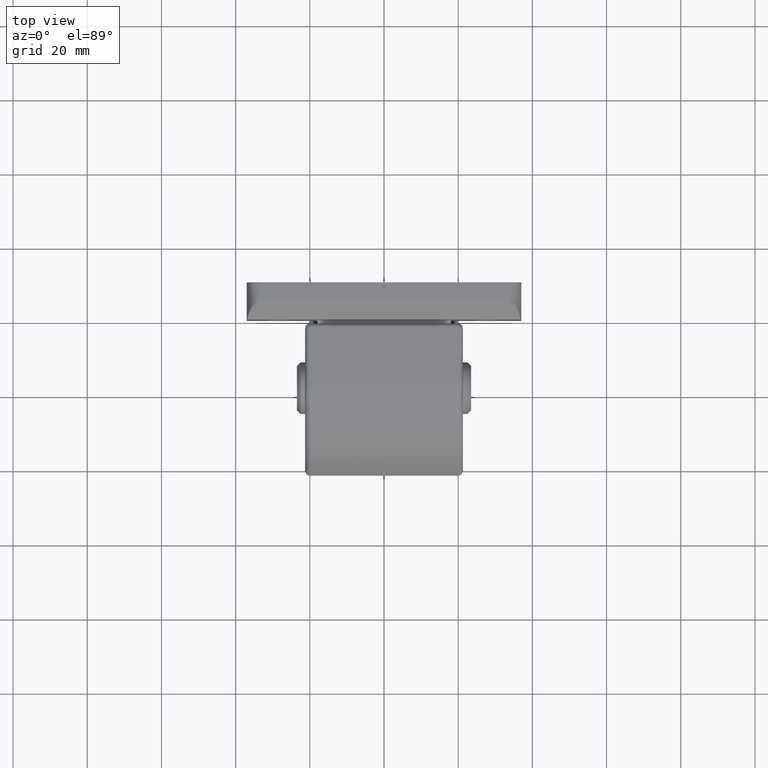
[diagram: clean part render]
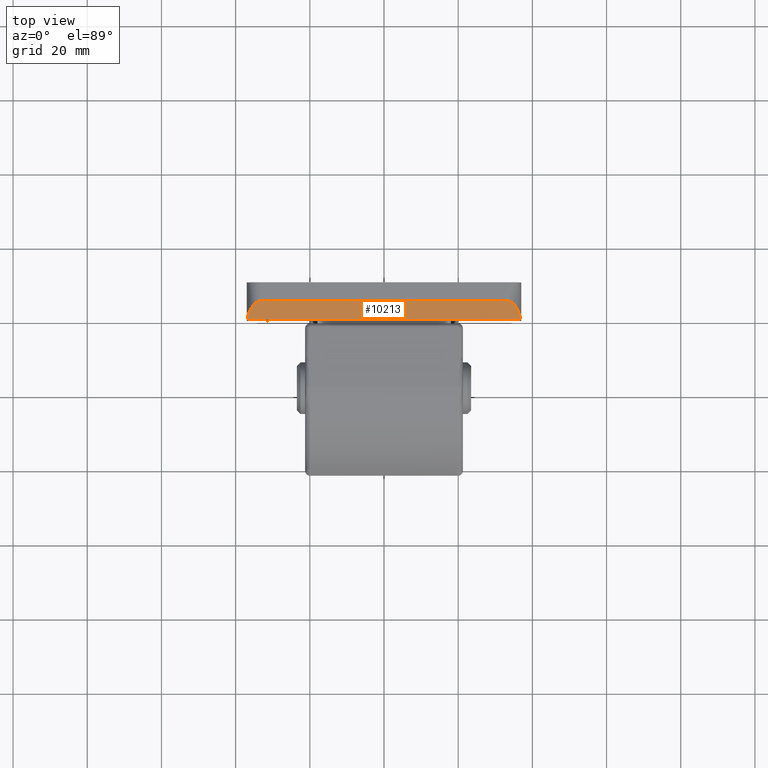
[diagram: same view with one face highlighted and labeled with its STEP entity id]
A machine part, top view. The second image highlights one B-rep face of the part: STEP entity #10213.
In plain terms, the highlighted face is a freeform B-spline surface patch.
Its self-contained STEP definition (entity closure, byte-faithful):
#8643=CARTESIAN_POINT('',(33.0,22.999993191008802,33.0));
#8644=VERTEX_POINT('',#8643);
#8650=CARTESIAN_POINT('',(36.872978808898303,18.000022946517099,30.000017572758502));
#8651=VERTEX_POINT('',#8650);
#8652=CARTESIAN_POINT('',(36.872978808898303,18.000022946517099,30.000017572758502));
#8653=CARTESIAN_POINT('',(36.098372083282200,22.999993671554577,33.000000288327463));
#8654=CARTESIAN_POINT('',(33.0,22.999993191008802,33.0));
#8662=(BOUNDED_CURVE()B_SPLINE_CURVE(2,(#8652,#8653,#8654),.UNSPECIFIED.,.F.,.U.)CURVE()GEOMETRIC_REPRESENTATION_ITEM()QUASI_UNIFORM_CURVE()RATIONAL_B_SPLINE_CURVE((1.0,0.790570775796503,1.0))REPRESENTATION_ITEM(''));
#8663=EDGE_CURVE('',#8651,#8644,#8662,.T.);
#8726=CARTESIAN_POINT('',(-36.872978808898097,18.000022946517099,30.000017572758502));
#8727=VERTEX_POINT('',#8726);
#8741=CARTESIAN_POINT('',(-33.0,22.999993191008802,33.0));
#8742=VERTEX_POINT('',#8741);
#8743=CARTESIAN_POINT('',(-33.0,22.999993191008841,33.0));
#8744=CARTESIAN_POINT('',(-36.098372157729429,22.999993191008837,33.000000000000007));
#8745=CARTESIAN_POINT('',(-36.872978808898168,18.000022946517120,30.000017572758470));
#8753=(BOUNDED_CURVE()B_SPLINE_CURVE(2,(#8743,#8744,#8745),.UNSPECIFIED.,.F.,.U.)CURVE()GEOMETRIC_REPRESENTATION_ITEM()QUASI_UNIFORM_CURVE()RATIONAL_B_SPLINE_CURVE((1.0,0.790570804289412,1.0))REPRESENTATION_ITEM(''));
#8754=EDGE_CURVE('',#8742,#8727,#8753,.T.);
#10169=CARTESIAN_POINT('',(33.0,22.999993191008802,33.0));
#10170=CARTESIAN_POINT('',(-33.0,22.999993191008802,33.0));
#10171=QUASI_UNIFORM_CURVE('',1,(#10169,#10170),.UNSPECIFIED.,.F.,.U.);
#10172=EDGE_CURVE('',#8644,#8742,#10171,.T.);
#10198=CARTESIAN_POINT('',(-40.556588556698763,17.750274243541760,29.850168336959960));
#10199=CARTESIAN_POINT('',(-40.556588556698763,23.249741089326239,33.149848753003731));
#10200=CARTESIAN_POINT('',(40.556591194059919,17.750274243541760,29.850168336959960));
#10201=CARTESIAN_POINT('',(40.556591194059919,23.249741089326239,33.149848753003731));
#10202=B_SPLINE_SURFACE_WITH_KNOTS('',1,1,((#10198,#10200),(#10199,#10201)),.UNSPECIFIED.,.F.,.F.,.U.,(2,2),(2,2),(0.0,6.413425483772728),(0.0,81.113179750758690),.UNSPECIFIED.);
#10203=ORIENTED_EDGE('',*,*,#10172,.T.);
#10204=ORIENTED_EDGE('',*,*,#8754,.T.);
#10205=CARTESIAN_POINT('',(36.872978808898303,18.000022946517099,30.000017572758502));
#10206=CARTESIAN_POINT('',(-36.872978808898097,18.000022946517099,30.000017572758502));
#10207=QUASI_UNIFORM_CURVE('',1,(#10205,#10206),.UNSPECIFIED.,.F.,.U.);
#10208=EDGE_CURVE('',#8651,#8727,#10207,.T.);
#10209=ORIENTED_EDGE('',*,*,#10208,.F.);
#10210=ORIENTED_EDGE('',*,*,#8663,.T.);
#10211=EDGE_LOOP('',(#10203,#10204,#10209,#10210));
#10212=FACE_OUTER_BOUND('',#10211,.T.);
#10213=ADVANCED_FACE('',(#10212),#10202,.F.);